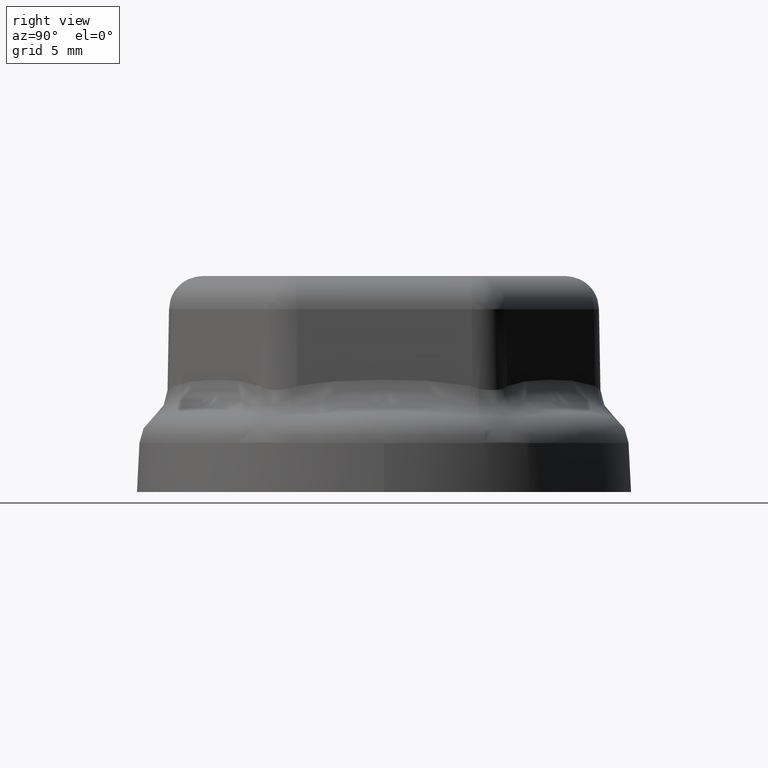
[diagram: clean part render]
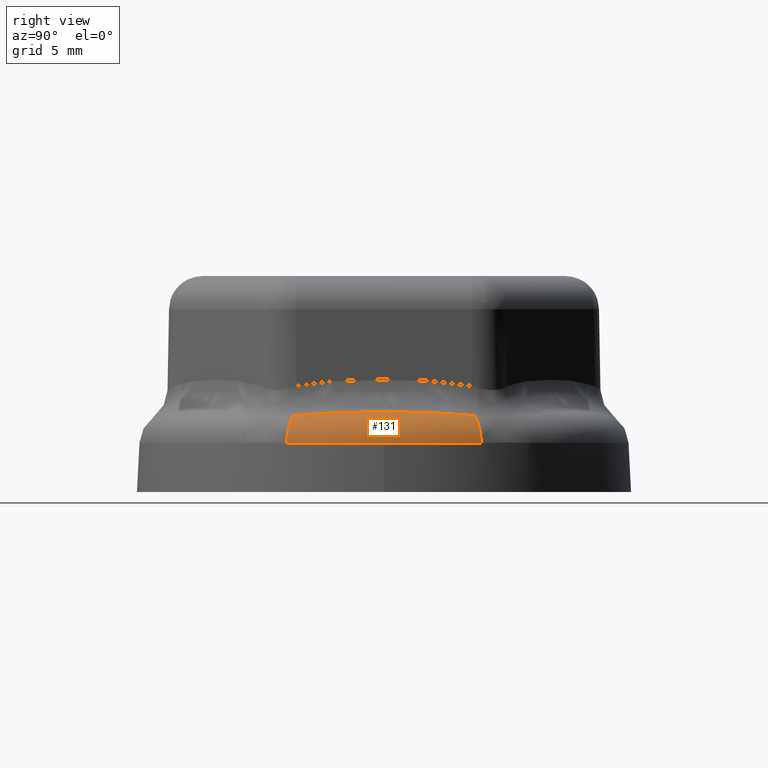
[diagram: same view with one face highlighted and labeled with its STEP entity id]
A machine part, right view. The second image highlights one B-rep face of the part: STEP entity #131.
In plain terms, the highlighted toroidal blend (fillet) surface has major radius 12.4973 mm and minor (blend) radius 2 mm.
Its self-contained STEP definition (entity closure, byte-faithful):
#131 = ADVANCED_FACE( '', ( #320 ), #321, .T. );
#320 = FACE_OUTER_BOUND( '', #2315, .T. );
#321 = TOROIDAL_SURFACE( '', #2316, 12.4972553080042, 2.00000000000000 );
#2315 = EDGE_LOOP( '', ( #5490, #5491, #5492, #5493, #5494, #5495 ) );
#2316 = AXIS2_PLACEMENT_3D( '', #5496, #5497, #5498 );
#5490 = ORIENTED_EDGE( '', *, *, #6058, .F. );
#5491 = ORIENTED_EDGE( '', *, *, #6059, .T. );
#5492 = ORIENTED_EDGE( '', *, *, #6051, .T. );
#5493 = ORIENTED_EDGE( '', *, *, #6048, .T. );
#5494 = ORIENTED_EDGE( '', *, *, #6060, .T. );
#5495 = ORIENTED_EDGE( '', *, *, #6061, .F. );
#5496 = CARTESIAN_POINT( '', ( 0.000000000000000, 0.000000000000000, 2.80000000000000 ) );
#5497 = DIRECTION( '', ( 0.000000000000000, 0.000000000000000, 1.00000000000000 ) );
#5498 = DIRECTION( '', ( 1.00000000000000, 0.000000000000000, 0.000000000000000 ) );
#6048 = EDGE_CURVE( '', #6453, #6458, #6460, .T. );
#6051 = EDGE_CURVE( '', #6461, #6453, #6465, .T. );
#6058 = EDGE_CURVE( '', #6476, #6477, #6478, .T. );
#6059 = EDGE_CURVE( '', #6476, #6461, #6479, .T. );
#6060 = EDGE_CURVE( '', #6458, #6480, #6481, .F. );
#6061 = EDGE_CURVE( '', #6477, #6480, #6482, .T. );
#6453 = VERTEX_POINT( '', #7681 );
#6458 = VERTEX_POINT( '', #7696 );
#6460 = B_SPLINE_CURVE_WITH_KNOTS( '', 3, ( #7698, #7699, #7700, #7701, #7702 ), .UNSPECIFIED., .F., .F., ( 4, 1, 4 ), ( 0.000000000000000, 0.000278033436308014, 0.000556066872616027 ), .UNSPECIFIED. );
#6461 = VERTEX_POINT( '', #7703 );
#6465 = B_SPLINE_CURVE_WITH_KNOTS( '', 3, ( #7735, #7736, #7737, #7738, #7739, #7740, #7741, #7742, #7743, #7744, #7745, #7746, #7747, #7748, #7749, #7750, #7751, #7752, #7753, #7754, #7755, #7756, #7757, #7758, #7759, #7760, #7761, #7762, #7763, #7764, #7765 ), .UNSPECIFIED., .F., .F., ( 4, 2, 2, 2, 2, 1, 1, 2, 2, 2, 1, 1, 1, 2, 2, 2, 2, 4 ), ( 0.000560050480484407, 0.00116967796041025, 0.00177930544033609, 0.00238893292026194, 0.00299856040018778, 0.00360818788011362, 0.00421781536003946, 0.00482744283996531, 0.00513225657992823, 0.00543707031989115, 0.00604669779981699, 0.00665632527974283, 0.00726595275966868, 0.00787558023959452, 0.00848520771952036, 0.00909483519944620, 0.00970446267937204, 0.0103140901592979 ), .UNSPECIFIED. );
#6476 = VERTEX_POINT( '', #7782 );
#6477 = VERTEX_POINT( '', #7783 );
#6478 = CIRCLE( '', #7784, 2.00000000000000 );
#6479 = B_SPLINE_CURVE_WITH_KNOTS( '', 3, ( #7785, #7786, #7787, #7788, #7789 ), .UNSPECIFIED., .F., .F., ( 4, 1, 4 ), ( 0.000000000000000, 0.000278033436504696, 0.000556066873009392 ), .UNSPECIFIED. );
#6480 = VERTEX_POINT( '', #7790 );
#6481 = CIRCLE( '', #7791, 2.00000000000000 );
#6482 = CIRCLE( '', #7792, 14.4945143775133 );
#7681 = CARTESIAN_POINT( '', ( 12.5476296182604, -4.85155815213688, 4.55691081517522 ) );
#7696 = CARTESIAN_POINT( '', ( 12.4313153387888, -5.39236071452568, 4.50021916036015 ) );
#7698 = CARTESIAN_POINT( '', ( 12.5476296182604, -4.85155815213688, 4.55691081517522 ) );
#7699 = CARTESIAN_POINT( '', ( 12.5326883624919, -4.94256158705261, 4.54663965708310 ) );
#7700 = CARTESIAN_POINT( '', ( 12.4983078134910, -5.12367276266150, 4.52678160838246 ) );
#7701 = CARTESIAN_POINT( '', ( 12.4551036999466, -5.30307352343582, 4.50871059213458 ) );
#7702 = CARTESIAN_POINT( '', ( 12.4313153387888, -5.39236071452568, 4.50021916036015 ) );
#7703 = CARTESIAN_POINT( '', ( 12.5476296183242, 4.85155815175091, 4.55691081522075 ) );
#7735 = CARTESIAN_POINT( '', ( 12.5476296183238, 4.85155815175076, 4.55691081521880 ) );
#7736 = CARTESIAN_POINT( '', ( 12.5804673239577, 4.65155193170039, 4.57948463947445 ) );
#7737 = CARTESIAN_POINT( '', ( 12.6117269291930, 4.45120674689453, 4.59865803346428 ) );
#7738 = CARTESIAN_POINT( '', ( 12.6707562740724, 4.04989432001767, 4.63193128840547 ) );
#7739 = CARTESIAN_POINT( '', ( 12.6985262152971, 3.84892674531933, 4.64602437329508 ) );
#7740 = CARTESIAN_POINT( '', ( 12.7502914498165, 3.44640463733890, 4.67036983402056 ) );
#7741 = CARTESIAN_POINT( '', ( 12.7742868669274, 3.24484992251206, 4.68061848443929 ) );
#7742 = CARTESIAN_POINT( '', ( 12.8182618336953, 2.84117633131498, 4.69818634546030 ) );
#7743 = CARTESIAN_POINT( '', ( 12.8382414693188, 2.63905735028069, 4.70550337962919 ) );
#7744 = CARTESIAN_POINT( '', ( 12.8739841928830, 2.23426977486984, 4.71788139862569 ) );
#7745 = CARTESIAN_POINT( '', ( 12.9055104507651, 1.82893249846219, 4.72800152589108 ) );
#7746 = CARTESIAN_POINT( '', ( 12.9396634015097, 1.21930365531070, 4.73786714201859 ) );
#7747 = CARTESIAN_POINT( '', ( 12.9534233294380, 0.811810989260559, 4.74155788440070 ) );
#7748 = CARTESIAN_POINT( '', ( 12.9602977260778, 0.505789409832612, 4.74338458960923 ) );
#7749 = CARTESIAN_POINT( '', ( 12.9620152939803, 0.403680378511929, 4.74383555875278 ) );
#7750 = CARTESIAN_POINT( '', ( 12.9642924437164, 0.199629154048141, 4.74443205388922 ) );
#7751 = CARTESIAN_POINT( '', ( 12.9648530204880, 0.0976604962017919, 4.74457784106482 ) );
#7752 = CARTESIAN_POINT( '', ( 12.9648049187579, -0.208075306411275, 4.74456530005104 ) );
#7753 = CARTESIAN_POINT( '', ( 12.9601257062848, -0.615269415261974, 4.74335679031237 ) );
#7754 = CARTESIAN_POINT( '', ( 12.9394076894153, -1.22470473053891, 4.73779560584676 ) );
#7755 = CARTESIAN_POINT( '', ( 12.9052421061552, -1.83278097364115, 4.72791860082023 ) );
#7756 = CARTESIAN_POINT( '', ( 12.8737389911929, -2.23725081300783, 4.71779993219801 ) );
#7757 = CARTESIAN_POINT( '', ( 12.8380291167458, -2.64125549619166, 4.70542634652848 ) );
#7758 = CARTESIAN_POINT( '', ( 12.8180707363379, -2.84302531294097, 4.69811342428378 ) );
#7759 = CARTESIAN_POINT( '', ( 12.7741417188156, -3.24608681888848, 4.68055705031809 ) );
#7760 = CARTESIAN_POINT( '', ( 12.7501709954951, -3.44737859805159, 4.67031580293257 ) );
#7761 = CARTESIAN_POINT( '', ( 12.6984523111793, -3.84946395895666, 4.64598698673061 ) );
#7762 = CARTESIAN_POINT( '', ( 12.6707042281043, -4.05025769684522, 4.63190318972141 ) );
#7763 = CARTESIAN_POINT( '', ( 12.6117094167232, -4.45131625353076, 4.59864692246589 ) );
#7764 = CARTESIAN_POINT( '', ( 12.5804624925096, -4.65158135885298, 4.57948131816550 ) );
#7765 = CARTESIAN_POINT( '', ( 12.5476296182608, -4.85155815213692, 4.55691081517536 ) );
#7782 = CARTESIAN_POINT( '', ( 12.4313153387888, 5.39236071452568, 4.50021916036014 ) );
#7783 = CARTESIAN_POINT( '', ( 13.2973925767399, 5.76804106261407, 2.90467191248589 ) );
#7784 = AXIS2_PLACEMENT_3D( '', #9114, #9115, #9116 );
#7785 = CARTESIAN_POINT( '', ( 12.4313153387888, 5.39236071452568, 4.50021916036014 ) );
#7786 = CARTESIAN_POINT( '', ( 12.4551036999635, 5.30307352337250, 4.50871059214059 ) );
#7787 = CARTESIAN_POINT( '', ( 12.4983076794666, 5.12367272259072, 4.52678150304276 ) );
#7788 = CARTESIAN_POINT( '', ( 12.5326883625457, 4.94256158673097, 4.54663965712142 ) );
#7789 = CARTESIAN_POINT( '', ( 12.5476296183238, 4.85155815175062, 4.55691081521882 ) );
#7790 = CARTESIAN_POINT( '', ( 13.2973925767399, -5.76804106261408, 2.90467191248589 ) );
#7791 = AXIS2_PLACEMENT_3D( '', #9117, #9118, #9119 );
#7792 = AXIS2_PLACEMENT_3D( '', #9120, #9121, #9122 );
#9114 = CARTESIAN_POINT( '', ( 11.4650898701436, 4.97323883429798, 2.80000000000000 ) );
#9115 = DIRECTION( '', ( -0.397946485986627, 0.917408629941367, 0.000000000000000 ) );
#9116 = DIRECTION( '', ( -0.917408629941367, -0.397946485986627, 0.000000000000000 ) );
#9117 = CARTESIAN_POINT( '', ( 11.4650898701436, -4.97323883429799, 2.80000000000000 ) );
#9118 = DIRECTION( '', ( -0.397946485986628, -0.917408629941366, -3.93505433650605E-017 ) );
#9119 = DIRECTION( '', ( 0.917408629941366, -0.397946485986628, 0.000000000000000 ) );
#9120 = CARTESIAN_POINT( '', ( 0.000000000000000, 0.000000000000000, 2.90467191248589 ) );
#9121 = DIRECTION( '', ( 0.000000000000000, 0.000000000000000, -1.00000000000000 ) );
#9122 = DIRECTION( '', ( -1.00000000000000, 0.000000000000000, 0.000000000000000 ) );